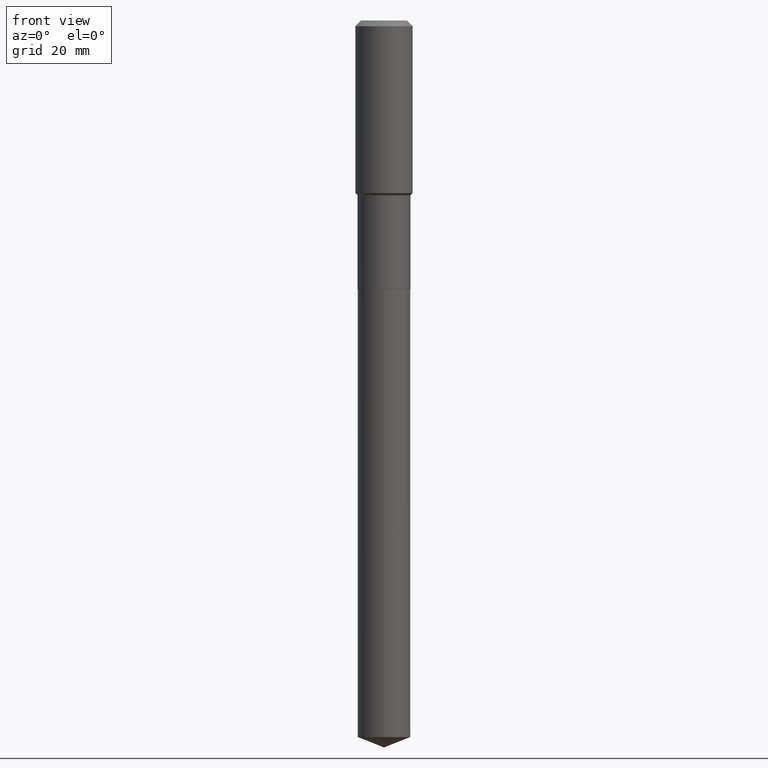
[diagram: clean part render]
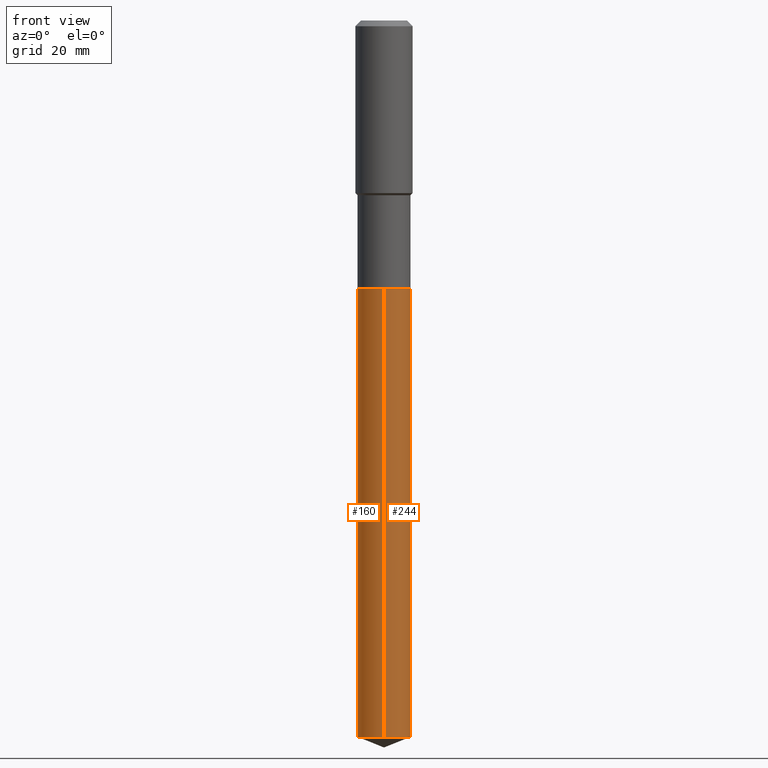
[diagram: same view with one multi-face feature highlighted, each face labeled with its STEP entity id]
A machine part, front view. The highlighted faces form ONE feature: a constant-radius fillet chain: 2 tangent blend faces with common blend radius 7.4003 mm. The faces share edges in the B-rep.
Their STEP definitions:
[1] entity #160 (Cylinder):
#17 = CIRCLE ( 'NONE', #373, 0.2913499999999999979 ) ;
#18 = CARTESIAN_POINT ( 'NONE',  ( -2.034486176143821442E-15, -0.2913500000000103229, -2.952699999999999214 ) ) ;
#27 = EDGE_CURVE ( 'NONE', #308, #192, #412, .T. ) ;
#43 = CARTESIAN_POINT ( 'NONE',  ( -2.034486176143821442E-15, -0.2913500000000103229, -2.952699999999999214 ) ) ;
#80 = VERTEX_POINT ( 'NONE', #152 ) ;
#87 = DIRECTION ( 'NONE',  ( -2.445478870628142678E-29, 3.491466925987928451E-15, 1.000000000000000000 ) ) ;
#99 = ORIENTED_EDGE ( 'NONE', *, *, #27, .T. ) ;
#120 = ORIENTED_EDGE ( 'NONE', *, *, #252, .T. ) ;
#124 = DIRECTION ( 'NONE',  ( -6.982962677686265922E-15, -1.000000000000000000, 3.750606478344620614E-15 ) ) ;
#150 = DIRECTION ( 'NONE',  ( -2.445478870628142678E-29, 3.491466925987928451E-15, 1.000000000000000000 ) ) ;
#152 = CARTESIAN_POINT ( 'NONE',  ( 2.070166260637244753E-15, 0.2913499999999896173, -2.952700000000001435 ) ) ;
#160 = ADVANCED_FACE ( 'NONE', ( #348 ), #169, .T. ) ;
#163 = CARTESIAN_POINT ( 'NONE',  ( 1.926382458395024925E-28, -2.750349432149039960E-14, -7.877334182929589090 ) ) ;
#169 = CYLINDRICAL_SURFACE ( 'NONE', #218, 0.2913499999999999979 ) ;
#183 = EDGE_LOOP ( 'NONE', ( #378, #120, #99, #343 ) ) ;
#191 = CARTESIAN_POINT ( 'NONE',  ( 2.070166260637244358E-15, 0.2913499999999725198, -7.877334182929589979 ) ) ;
#192 = VERTEX_POINT ( 'NONE', #18 ) ;
#208 = EDGE_CURVE ( 'NONE', #80, #192, #421, .T. ) ;
#218 = AXIS2_PLACEMENT_3D ( 'NONE', #237, #87, #468 ) ;
#223 = LINE ( 'NONE', #312, #297 ) ;
#237 = CARTESIAN_POINT ( 'NONE',  ( 7.220735744022853640E-29, -1.030929694920215659E-14, -2.952700000000000546 ) ) ;
#241 = DIRECTION ( 'NONE',  ( -2.445478870628142678E-29, 3.491466925987928451E-15, 1.000000000000000000 ) ) ;
#252 = EDGE_CURVE ( 'NONE', #424, #308, #17, .T. ) ;
#272 = VECTOR ( 'NONE', #150, 39.37007874015748143 ) ;
#297 = VECTOR ( 'NONE', #411, 39.37007874015748143 ) ;
#308 = VERTEX_POINT ( 'NONE', #401 ) ;
#312 = CARTESIAN_POINT ( 'NONE',  ( 2.070166260637124057E-15, 0.2913499999999896728, -2.952700000000001435 ) ) ;
#318 = DIRECTION ( 'NONE',  ( -2.445478870628142678E-29, 3.491466925987928451E-15, 1.000000000000000000 ) ) ;
#322 = CARTESIAN_POINT ( 'NONE',  ( 7.220735744022853640E-29, -1.030929694920215659E-14, -2.952700000000000546 ) ) ;
#343 = ORIENTED_EDGE ( 'NONE', *, *, #208, .F. ) ;
#348 = FACE_OUTER_BOUND ( 'NONE', #183, .T. ) ;
#373 = AXIS2_PLACEMENT_3D ( 'NONE', #163, #318, #124 ) ;
#378 = ORIENTED_EDGE ( 'NONE', *, *, #426, .F. ) ;
#401 = CARTESIAN_POINT ( 'NONE',  ( -2.034486176143700747E-15, -0.2913500000000274204, -7.877334182929588202 ) ) ;
#411 = DIRECTION ( 'NONE',  ( -2.445478870628142678E-29, 3.491466925987928451E-15, 1.000000000000000000 ) ) ;
#412 = LINE ( 'NONE', #43, #272 ) ;
#421 = CIRCLE ( 'NONE', #464, 0.2913499999999999979 ) ;
#424 = VERTEX_POINT ( 'NONE', #191 ) ;
#426 = EDGE_CURVE ( 'NONE', #424, #80, #223, .T. ) ;
#464 = AXIS2_PLACEMENT_3D ( 'NONE', #322, #241, #472 ) ;
#468 = DIRECTION ( 'NONE',  ( -6.982962677686265922E-15, -1.000000000000000000, 3.750606478344620614E-15 ) ) ;
#472 = DIRECTION ( 'NONE',  ( -6.982962677686265922E-15, -1.000000000000000000, 3.750606478344620614E-15 ) ) ;
[2] entity #244 (Cylinder):
#18 = CARTESIAN_POINT ( 'NONE',  ( -2.034486176143821442E-15, -0.2913500000000103229, -2.952699999999999214 ) ) ;
#27 = EDGE_CURVE ( 'NONE', #308, #192, #412, .T. ) ;
#38 = DIRECTION ( 'NONE',  ( -6.982962677686265922E-15, -1.000000000000000000, 3.750606478344620614E-15 ) ) ;
#43 = CARTESIAN_POINT ( 'NONE',  ( -2.034486176143821442E-15, -0.2913500000000103229, -2.952699999999999214 ) ) ;
#52 = DIRECTION ( 'NONE',  ( -2.445478870628142678E-29, 3.491466925987928451E-15, 1.000000000000000000 ) ) ;
#68 = DIRECTION ( 'NONE',  ( -2.445478870628142678E-29, 3.491466925987928451E-15, 1.000000000000000000 ) ) ;
#79 = CIRCLE ( 'NONE', #358, 0.2913499999999999979 ) ;
#80 = VERTEX_POINT ( 'NONE', #152 ) ;
#117 = AXIS2_PLACEMENT_3D ( 'NONE', #290, #52, #436 ) ;
#150 = DIRECTION ( 'NONE',  ( -2.445478870628142678E-29, 3.491466925987928451E-15, 1.000000000000000000 ) ) ;
#152 = CARTESIAN_POINT ( 'NONE',  ( 2.070166260637244753E-15, 0.2913499999999896173, -2.952700000000001435 ) ) ;
#172 = FACE_OUTER_BOUND ( 'NONE', #460, .T. ) ;
#181 = CARTESIAN_POINT ( 'NONE',  ( 7.220735744022853640E-29, -1.030929694920215659E-14, -2.952700000000000546 ) ) ;
#184 = DIRECTION ( 'NONE',  ( -6.982962677686265922E-15, -1.000000000000000000, 3.750606478344620614E-15 ) ) ;
#191 = CARTESIAN_POINT ( 'NONE',  ( 2.070166260637244358E-15, 0.2913499999999725198, -7.877334182929589979 ) ) ;
#192 = VERTEX_POINT ( 'NONE', #18 ) ;
#223 = LINE ( 'NONE', #312, #297 ) ;
#244 = ADVANCED_FACE ( 'NONE', ( #172 ), #477, .T. ) ;
#259 = DIRECTION ( 'NONE',  ( -2.445478870628142678E-29, 3.491466925987928451E-15, 1.000000000000000000 ) ) ;
#272 = VECTOR ( 'NONE', #150, 39.37007874015748143 ) ;
#290 = CARTESIAN_POINT ( 'NONE',  ( 7.220735744022853640E-29, -1.030929694920215659E-14, -2.952700000000000546 ) ) ;
#294 = ORIENTED_EDGE ( 'NONE', *, *, #27, .F. ) ;
#297 = VECTOR ( 'NONE', #411, 39.37007874015748143 ) ;
#308 = VERTEX_POINT ( 'NONE', #401 ) ;
#312 = CARTESIAN_POINT ( 'NONE',  ( 2.070166260637124057E-15, 0.2913499999999896728, -2.952700000000001435 ) ) ;
#336 = EDGE_CURVE ( 'NONE', #192, #80, #446, .T. ) ;
#345 = ORIENTED_EDGE ( 'NONE', *, *, #426, .T. ) ;
#358 = AXIS2_PLACEMENT_3D ( 'NONE', #370, #68, #38 ) ;
#370 = CARTESIAN_POINT ( 'NONE',  ( 1.926382458395024925E-28, -2.750349432149039960E-14, -7.877334182929589090 ) ) ;
#371 = EDGE_CURVE ( 'NONE', #308, #424, #79, .T. ) ;
#401 = CARTESIAN_POINT ( 'NONE',  ( -2.034486176143700747E-15, -0.2913500000000274204, -7.877334182929588202 ) ) ;
#404 = ORIENTED_EDGE ( 'NONE', *, *, #371, .T. ) ;
#411 = DIRECTION ( 'NONE',  ( -2.445478870628142678E-29, 3.491466925987928451E-15, 1.000000000000000000 ) ) ;
#412 = LINE ( 'NONE', #43, #272 ) ;
#415 = ORIENTED_EDGE ( 'NONE', *, *, #336, .F. ) ;
#424 = VERTEX_POINT ( 'NONE', #191 ) ;
#426 = EDGE_CURVE ( 'NONE', #424, #80, #223, .T. ) ;
#436 = DIRECTION ( 'NONE',  ( -6.982962677686265922E-15, -1.000000000000000000, 3.750606478344620614E-15 ) ) ;
#446 = CIRCLE ( 'NONE', #484, 0.2913499999999999979 ) ;
#460 = EDGE_LOOP ( 'NONE', ( #404, #345, #415, #294 ) ) ;
#477 = CYLINDRICAL_SURFACE ( 'NONE', #117, 0.2913499999999999979 ) ;
#484 = AXIS2_PLACEMENT_3D ( 'NONE', #181, #259, #184 ) ;